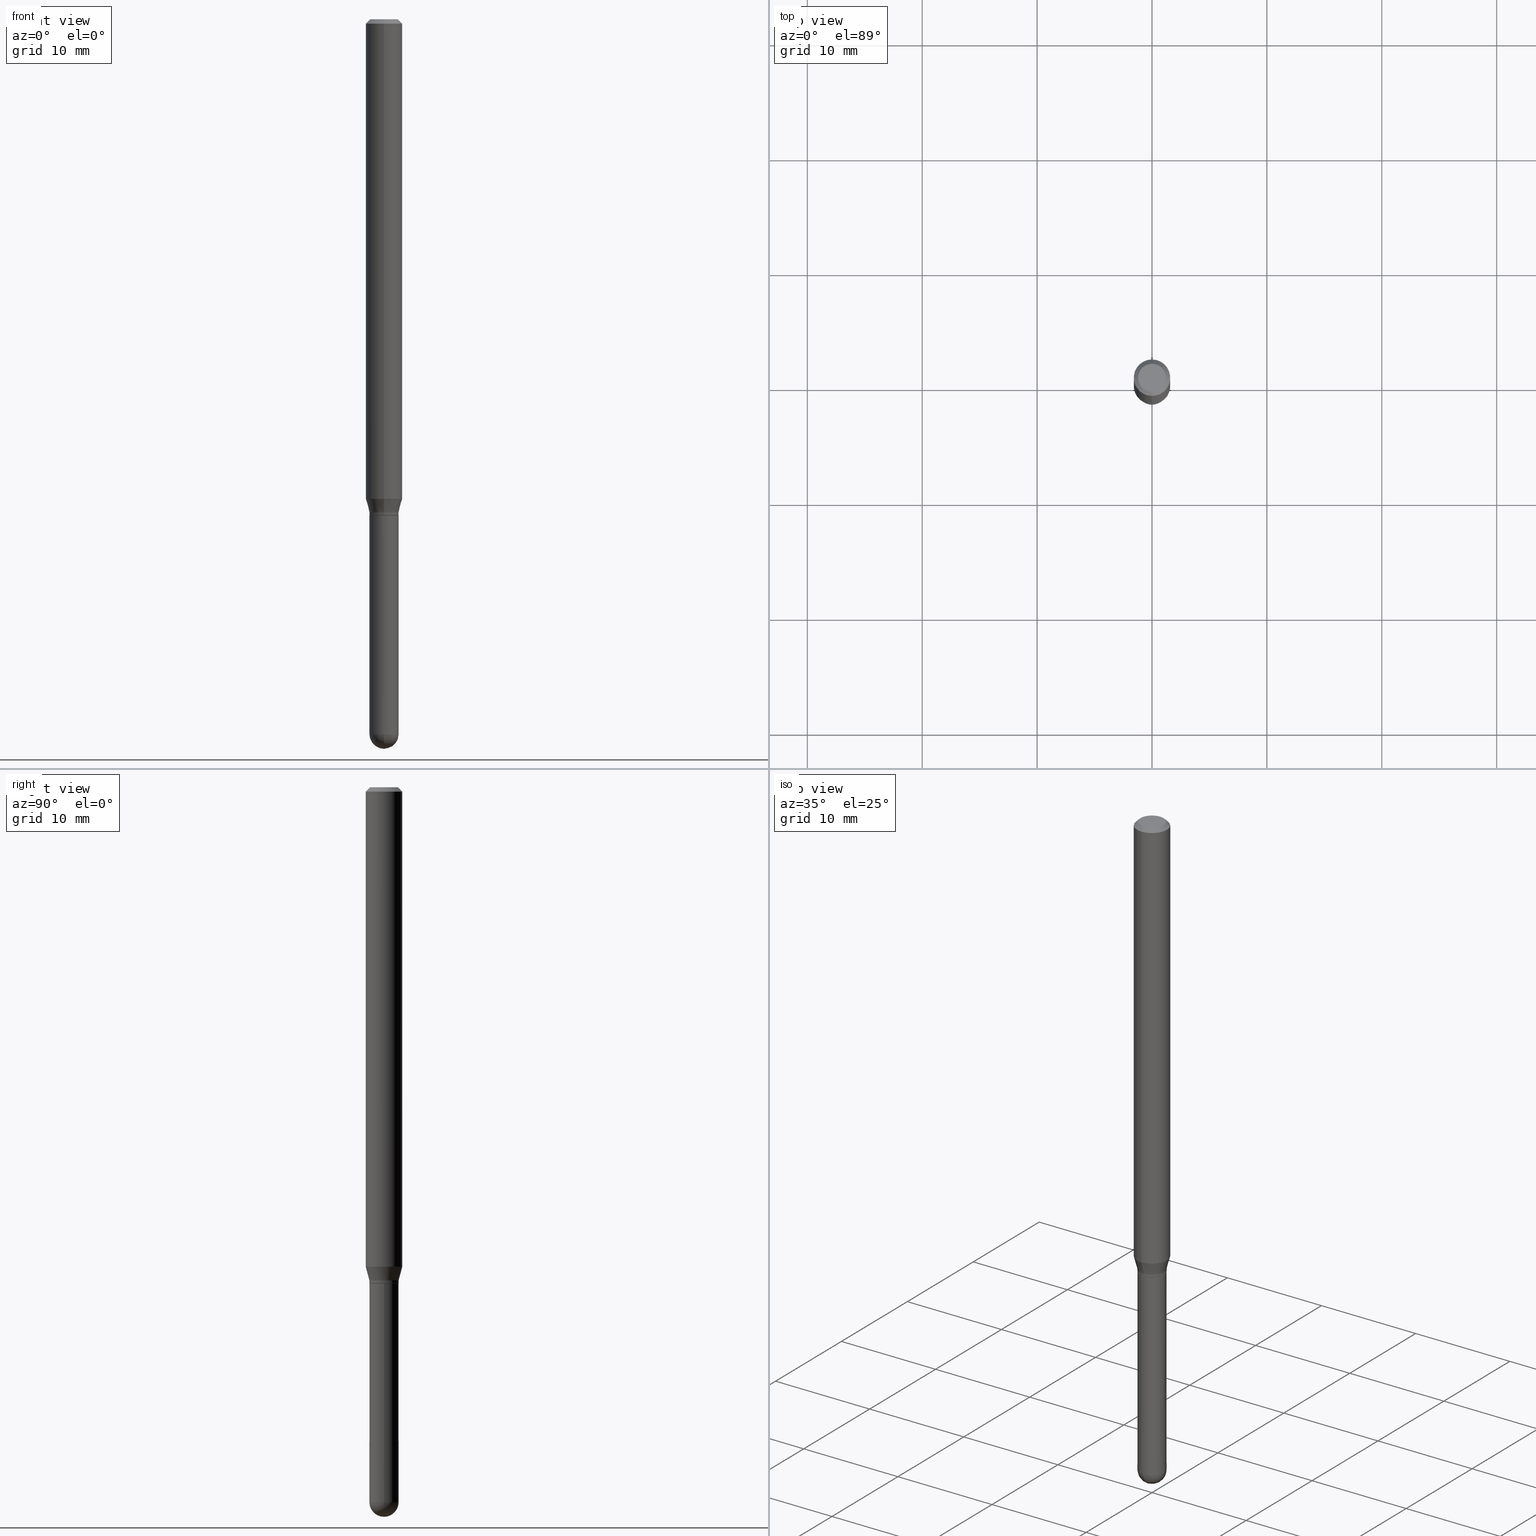
[diagram: canonical four-view strip — front | top / right | iso, engineering-drawing reading convention]
A machine part, canonical four-view strip (front | top / right | iso — engineering-drawing reading convention). The complete STEP part file that produces these views, byte-faithful:
ISO-10303-21;
HEADER;
FILE_DESCRIPTION (( 'STEP AP203' ),
    '1' );
FILE_NAME ('01002.STEP',
    '2024-03-07T19:39:22',
    ( '' ),
    ( '' ),
    'SwSTEP 2.0',
    'SolidWorks 2023',
    '' );
FILE_SCHEMA (( 'CONFIG_CONTROL_DESIGN' ));
ENDSEC;

DATA;
#1 = ORIENTED_EDGE ( 'NONE', *, *, #73, .T. ) ;
#2 = VECTOR ( 'NONE', #104, 39.37007874015748143 ) ;
#3 = CARTESIAN_POINT ( 'NONE',  ( 4.364351673553919652E-16, 0.06249999999999995143, -0.01500000000000022669 ) ) ;
#4 = LOCAL_TIME ( 14, 39, 22.00000000000000000, #184 ) ;
#5 = EDGE_CURVE ( 'NONE', #285, #193, #212, .T. ) ;
#6 = EDGE_LOOP ( 'NONE', ( #508, #202, #99, #32, #197 ) ) ;
#7 = PERSON_AND_ORGANIZATION ( #460, #199 ) ;
#8 = CARTESIAN_POINT ( 'NONE',  ( 4.157435647702293587E-29, -5.935319682407744327E-15, -1.699999999999999956 ) ) ;
#9 = CARTESIAN_POINT ( 'NONE',  ( 3.491481338843548493E-16, 0.04999999999999407002, -1.700000000000000400 ) ) ;
#10 = CARTESIAN_POINT ( 'NONE',  ( -3.491481338842696524E-16, -0.05000000000000556083, -1.689999999999999725 ) ) ;
#11 = PERSON_AND_ORGANIZATION_ROLE ( 'creator' ) ;
#12 = ORIENTED_EDGE ( 'NONE', *, *, #244, .T. ) ;
#13 = FACE_OUTER_BOUND ( 'NONE', #125, .T. ) ;
#14 = CC_DESIGN_APPROVAL ( #447, ( #178 ) ) ;
#15 = AXIS2_PLACEMENT_3D ( 'NONE', #238, #396, #358 ) ;
#16 = DATE_AND_TIME ( #47, #264 ) ;
#17 = DIRECTION ( 'NONE',  ( 6.982962677686265133E-15, 1.000000000000000000, -5.463695987328524859E-15 ) ) ;
#18 = CARTESIAN_POINT ( 'NONE',  ( 4.018893665462696370E-29, -5.737531665056008006E-15, -1.643349364905387855 ) ) ;
#19 = DIRECTION ( 'NONE',  ( -2.445468806185136597E-29, 3.491481338843145583E-15, 1.000000000000000000 ) ) ;
#20 = CARTESIAN_POINT ( 'NONE',  ( 0.000000000000000000, 0.000000000000000000, 0.000000000000000000 ) ) ;
#21 = CALENDAR_DATE ( 2024, 7, 3 ) ;
#22 = CARTESIAN_POINT ( 'NONE',  ( 4.440892098500625669E-16, 0.06250000000000000000, -2.182102824414611697E-16 ) ) ;
#23 = ADVANCED_FACE ( 'NONE', ( #405 ), #48, .T. ) ;
#24 = CYLINDRICAL_SURFACE ( 'NONE', #467, 0.04999999999999999584 ) ;
#25 = CC_DESIGN_PERSON_AND_ORGANIZATION_ASSIGNMENT ( #289, #419, ( #363 ) ) ;
#26 = DIRECTION ( 'NONE',  ( -2.445550381001349235E-29, 3.491364519063378714E-15, 1.000000000000000000 ) ) ;
#27 = AXIS2_PLACEMENT_3D ( 'NONE', #51, #134, #287 ) ;
#28 = AXIS2_PLACEMENT_3D ( 'NONE', #459, #343, #118 ) ;
#29 = ORIENTED_EDGE ( 'NONE', *, *, #57, .F. ) ;
#30 = AXIS2_PLACEMENT_3D ( 'NONE', #292, #63, #413 ) ;
#31 = CARTESIAN_POINT ( 'NONE',  ( 3.552713678800475982E-16, 0.04999999999999965583, -1.745682259531677327E-16 ) ) ;
#32 = ORIENTED_EDGE ( 'NONE', *, *, #251, .T. ) ;
#33 = ORIENTED_EDGE ( 'NONE', *, *, #284, .F. ) ;
#34 = CARTESIAN_POINT ( 'NONE',  ( 0.000000000000000000, 0.000000000000000000, 0.000000000000000000 ) ) ;
#35 = FACE_OUTER_BOUND ( 'NONE', #205, .T. ) ;
#36 = EDGE_CURVE ( 'NONE', #297, #41, #479, .T. ) ;
#37 = EDGE_LOOP ( 'NONE', ( #33, #55, #315, #355 ) ) ;
#38 = AXIS2_PLACEMENT_3D ( 'NONE', #20, #209, #189 ) ;
#39 = CYLINDRICAL_SURFACE ( 'NONE', #499, 0.04999999999999999584 ) ;
#40 = CONICAL_SURFACE ( 'NONE', #30, 0.06250000000000000000, 0.7853981633974483900 ) ;
#41 = VERTEX_POINT ( 'NONE', #435 ) ;
#42 = CARTESIAN_POINT ( 'NONE',  ( 3.552713678800889641E-16, 0.04999999999999376471, -1.690000000000000169 ) ) ;
#43 = ORIENTED_EDGE ( 'NONE', *, *, #89, .F. ) ;
#44 = COORDINATED_UNIVERSAL_TIME_OFFSET ( 5, 0, .BEHIND. ) ;
#45 = DIRECTION ( 'NONE',  ( 1.000000000000000000, -6.982962677686255667E-15, 0.000000000000000000 ) ) ;
#46 = ADVANCED_FACE ( 'NONE', ( #484 ), #365, .F. ) ;
#47 = CALENDAR_DATE ( 2024, 7, 3 ) ;
#48 = SPHERICAL_SURFACE ( 'NONE', #236, 0.05000000000000000971 ) ;
#49 = APPROVAL_DATE_TIME ( #480, #447 ) ;
#50 = AXIS2_PLACEMENT_3D ( 'NONE', #218, #211, #219 ) ;
#51 = CARTESIAN_POINT ( 'NONE',  ( 4.132980143892280352E-29, -5.900406037217110820E-15, -1.689999999999999947 ) ) ;
#52 = ORIENTED_EDGE ( 'NONE', *, *, #388, .F. ) ;
#53 = COORDINATED_UNIVERSAL_TIME_OFFSET ( 5, 0, .BEHIND. ) ;
#54 = FACE_OUTER_BOUND ( 'NONE', #359, .T. ) ;
#55 = ORIENTED_EDGE ( 'NONE', *, *, #153, .T. ) ;
#56 = DIRECTION ( 'NONE',  ( -2.445550381001349235E-29, 3.491364519063378714E-15, 1.000000000000000000 ) ) ;
#57 = EDGE_CURVE ( 'NONE', #297, #80, #431, .T. ) ;
#58 = ORIENTED_EDGE ( 'NONE', *, *, #89, .T. ) ;
#59 = CIRCLE ( 'NONE', #107, 0.05000000000000000278 ) ;
#60 = DIRECTION ( 'NONE',  ( -2.445550381001348954E-29, 3.491364519063378714E-15, 1.000000000000000000 ) ) ;
#61 = CIRCLE ( 'NONE', #214, 0.04999999999999999584 ) ;
#62 = CIRCLE ( 'NONE', #407, 0.04999999999999999584 ) ;
#63 = DIRECTION ( 'NONE',  ( 2.445550381001349235E-29, -3.491364519063378714E-15, -1.000000000000000000 ) ) ;
#64 = CARTESIAN_POINT ( 'NONE',  ( -3.491481338843108703E-16, -0.04999999999999965583, 1.745682259531677327E-16 ) ) ;
#65 = DIRECTION ( 'NONE',  ( 2.445550381001348954E-29, -3.491364519063378714E-15, -1.000000000000000000 ) ) ;
#66 = EDGE_CURVE ( 'NONE', #172, #78, #200, .T. ) ;
#67 = DIRECTION ( 'NONE',  ( -2.445550381001349235E-29, 3.491364519063378714E-15, 1.000000000000000000 ) ) ;
#68 = CARTESIAN_POINT ( 'NONE',  ( 3.534950110406901418E-16, 0.04949999999999407652, -1.700000000000000178 ) ) ;
#69 = CIRCLE ( 'NONE', #119, 0.05000000000000000971 ) ;
#70 = VECTOR ( 'NONE', #105, 39.37007874015748143 ) ;
#71 = DATE_AND_TIME ( #21, #4 ) ;
#72 = CARTESIAN_POINT ( 'NONE',  ( 5.991398575153583765E-29, -8.554129280165706697E-15, -2.449999999999999734 ) ) ;
#73 = EDGE_CURVE ( 'NONE', #473, #177, #259, .T. ) ;
#74 = DIRECTION ( 'NONE',  ( -6.982962677686266711E-15, -1.000000000000000000, 5.518884835685379092E-15 ) ) ;
#75 = DIRECTION ( 'NONE',  ( -6.982962677686265922E-15, -1.000000000000000000, 3.483106191921935554E-15 ) ) ;
#76 = VECTOR ( 'NONE', #277, 39.37007874015748143 ) ;
#77 = APPROVAL_PERSON_ORGANIZATION ( #453, #344, #294 ) ;
#78 = VERTEX_POINT ( 'NONE', #88 ) ;
#79 = DIRECTION ( 'NONE',  ( -2.445550381001349235E-29, 3.491364519063378714E-15, 1.000000000000000000 ) ) ;
#80 = VERTEX_POINT ( 'NONE', #171 ) ;
#81 = LINE ( 'NONE', #507, #352 ) ;
#82 = EDGE_CURVE ( 'NONE', #391, #354, #255, .T. ) ;
#83 = ORIENTED_EDGE ( 'NONE', *, *, #57, .T. ) ;
#84 =( LENGTH_UNIT ( ) NAMED_UNIT ( * ) SI_UNIT ( $, .METRE. ) );
#85 = ORIENTED_EDGE ( 'NONE', *, *, #388, .T. ) ;
#86 = CIRCLE ( 'NONE', #383, 0.04999999999999965583 ) ;
#87 = DIRECTION ( 'NONE',  ( -6.982962677686265133E-15, -1.000000000000000000, 5.463695987328563513E-15 ) ) ;
#88 = CARTESIAN_POINT ( 'NONE',  ( -3.552713678799901099E-16, -0.05000000000000856537, -2.449999999999999734 ) ) ;
#89 = EDGE_CURVE ( 'NONE', #96, #193, #372, .T. ) ;
#90 = EDGE_LOOP ( 'NONE', ( #43, #135, #349, #325 ) ) ;
#91 = DIRECTION ( 'NONE',  ( 6.982962677686266711E-15, 1.000000000000000000, 0.000000000000000000 ) ) ;
#92 = VERTEX_POINT ( 'NONE', #233 ) ;
#93 = MANIFOLD_SOLID_BREP ( 'Body-Move/Copy2[2]', #305 ) ;
#94 = PERSON_AND_ORGANIZATION_ROLE ( 'classification_officer' ) ;
#95 = CARTESIAN_POINT ( 'NONE',  ( 5.987122743707687383E-29, -8.560252514161443770E-15, -2.450000000000000178 ) ) ;
#96 = VERTEX_POINT ( 'NONE', #163 ) ;
#97 = AXIS2_PLACEMENT_3D ( 'NONE', #123, #321, #126 ) ;
#98 = CARTESIAN_POINT ( 'NONE',  ( 0.04999999999999999584, -7.593971911983840291E-15, -2.449999999999999734 ) ) ;
#99 = ORIENTED_EDGE ( 'NONE', *, *, #158, .T. ) ;
#100 = LINE ( 'NONE', #401, #506 ) ;
#101 = UNCERTAINTY_MEASURE_WITH_UNIT (LENGTH_MEASURE( 1.000000000000000082E-05 ), #392, 'distance_accuracy_value', 'NONE');
#102 = EDGE_CURVE ( 'NONE', #354, #391, #132, .T. ) ;
#103 = EDGE_LOOP ( 'NONE', ( #291, #58, #368, #505 ) ) ;
#104 = DIRECTION ( 'NONE',  ( -2.445468806185136877E-29, 3.491481338843145188E-15, 1.000000000000000000 ) ) ;
#105 = DIRECTION ( 'NONE',  ( -2.445550381001348954E-29, 3.491364519063378714E-15, 1.000000000000000000 ) ) ;
#106 = PERSON_AND_ORGANIZATION ( #460, #199 ) ;
#107 = AXIS2_PLACEMENT_3D ( 'NONE', #207, #318, #471 ) ;
#108 = FACE_OUTER_BOUND ( 'NONE', #443, .T. ) ;
#109 = CIRCLE ( 'NONE', #97, 0.04749999999999999362 ) ;
#110 = VECTOR ( 'NONE', #452, 39.37007874015748143 ) ;
#111 = ADVANCED_FACE ( 'NONE', ( #35 ), #308, .T. ) ;
#112 = PLANE ( 'NONE',  #385 ) ;
#113 = CARTESIAN_POINT ( 'NONE',  ( 3.668325571502026339E-31, -5.237046778595071055E-17, -0.01500000000000000812 ) ) ;
#114 = AXIS2_PLACEMENT_3D ( 'NONE', #151, #226, #190 ) ;
#115 = AXIS2_PLACEMENT_3D ( 'NONE', #95, #124, #91 ) ;
#116 = CARTESIAN_POINT ( 'NONE',  ( 4.157435647702293587E-29, -5.935319682407744327E-15, -1.699999999999999956 ) ) ;
#117 = ORIENTED_EDGE ( 'NONE', *, *, #269, .T. ) ;
#118 = DIRECTION ( 'NONE',  ( -6.982962677686265922E-15, -1.000000000000000000, 3.491364519063378714E-15 ) ) ;
#119 = AXIS2_PLACEMENT_3D ( 'NONE', #265, #496, #497 ) ;
#120 = ORIENTED_EDGE ( 'NONE', *, *, #376, .T. ) ;
#121 = EDGE_CURVE ( 'NONE', #177, #278, #155, .T. ) ;
#122 = ORIENTED_EDGE ( 'NONE', *, *, #357, .F. ) ;
#123 = CARTESIAN_POINT ( 'NONE',  ( 2.168192816479982563E-46, -3.095397882110583642E-32, -8.865868531370020631E-18 ) ) ;
#124 = DIRECTION ( 'NONE',  ( 1.000000000000000000, -6.982962677686265922E-15, 4.883557194083112340E-29 ) ) ;
#125 = EDGE_LOOP ( 'NONE', ( #143, #503, #29, #246 ) ) ;
#126 = DIRECTION ( 'NONE',  ( -6.982962677686266711E-15, -1.000000000000000000, 3.491364519063378714E-15 ) ) ;
#127 = CC_DESIGN_DATE_AND_TIME_ASSIGNMENT ( #16, #483, ( #203 ) ) ;
#128 = ORIENTED_EDGE ( 'NONE', *, *, #36, .F. ) ;
#129 = CC_DESIGN_APPROVAL ( #344, ( #203 ) ) ;
#130 = PERSON_AND_ORGANIZATION ( #460, #199 ) ;
#131 = CARTESIAN_POINT ( 'NONE',  ( -3.491481338842686663E-16, -0.05000000000000548450, -1.699500000000000011 ) ) ;
#132 = CIRCLE ( 'NONE', #280, 0.04950000000000000927 ) ;
#133 = ORIENTED_EDGE ( 'NONE', *, *, #284, .T. ) ;
#134 = DIRECTION ( 'NONE',  ( -2.445550381001349235E-29, 3.491364519063378714E-15, 1.000000000000000000 ) ) ;
#135 = ORIENTED_EDGE ( 'NONE', *, *, #307, .T. ) ;
#136 = LINE ( 'NONE', #149, #2 ) ;
#137 = CARTESIAN_POINT ( 'NONE',  ( 5.991398575153583765E-29, -8.554129280165706697E-15, -2.449999999999999734 ) ) ;
#138 = VECTOR ( 'NONE', #481, 39.37007874015748854 ) ;
#139 = EDGE_CURVE ( 'NONE', #92, #167, #59, .T. ) ;
#140 = DIRECTION ( 'NONE',  ( -2.445550381001349235E-29, 3.491364519063378714E-15, 1.000000000000000000 ) ) ;
#141 = AXIS2_PLACEMENT_3D ( 'NONE', #9, #174, #328 ) ;
#142 = DIMENSIONAL_EXPONENTS ( 1.000000000000000000, 0.000000000000000000, 0.000000000000000000, 0.000000000000000000, 0.000000000000000000, 0.000000000000000000, 0.000000000000000000 ) ;
#143 = ORIENTED_EDGE ( 'NONE', *, *, #121, .T. ) ;
#144 = FACE_OUTER_BOUND ( 'NONE', #164, .T. ) ;
#145 = CARTESIAN_POINT ( 'NONE',  ( 5.987122743707687383E-29, -8.560252514161443770E-15, -2.450000000000000178 ) ) ;
#146 = CARTESIAN_POINT ( 'NONE',  ( 5.991398575153583765E-29, -8.554129280165706697E-15, -2.449999999999999734 ) ) ;
#147 = ADVANCED_FACE ( 'NONE', ( #144 ), #281, .T. ) ;
#148 = AXIS2_PLACEMENT_3D ( 'NONE', #113, #194, #75 ) ;
#149 = CARTESIAN_POINT ( 'NONE',  ( -0.04999999999999999584, 3.552713678800500634E-16, -2.459467545127452961E-30 ) ) ;
#150 = CC_DESIGN_SECURITY_CLASSIFICATION ( #192, ( #178 ) ) ;
#151 = CARTESIAN_POINT ( 'NONE',  ( 4.157296970514732439E-29, -5.935518276033348003E-15, -1.700000000000000178 ) ) ;
#152 = DIRECTION ( 'NONE',  ( -2.445550381001349235E-29, 3.491364519063378714E-15, 1.000000000000000000 ) ) ;
#153 = EDGE_CURVE ( 'NONE', #80, #297, #409, .T. ) ;
#154 = AXIS2_PLACEMENT_3D ( 'NONE', #470, #196, #427 ) ;
#155 = CIRCLE ( 'NONE', #27, 0.04999999999999966277 ) ;
#156 = ORIENTED_EDGE ( 'NONE', *, *, #367, .F. ) ;
#157 = DIRECTION ( 'NONE',  ( -6.982962677686265922E-15, -1.000000000000000000, 3.491364519063378714E-15 ) ) ;
#158 = EDGE_CURVE ( 'NONE', #78, #285, #62, .T. ) ;
#159 = ORIENTED_EDGE ( 'NONE', *, *, #367, .T. ) ;
#160 = DIRECTION ( 'NONE',  ( 1.000000000000000000, 0.000000000000000000, 0.000000000000000000 ) ) ;
#161 = ORIENTED_EDGE ( 'NONE', *, *, #509, .T. ) ;
#162 = DIRECTION ( 'NONE',  ( -2.445550381001349235E-29, 3.491364519063378714E-15, 1.000000000000000000 ) ) ;
#163 = CARTESIAN_POINT ( 'NONE',  ( 6.111534099739893301E-29, -8.731764964105732690E-15, -2.500000000000000000 ) ) ;
#164 = EDGE_LOOP ( 'NONE', ( #397, #445, #469, #120 ) ) ;
#165 = FACE_OUTER_BOUND ( 'NONE', #491, .T. ) ;
#166 = ADVANCED_FACE ( 'NONE', ( #13 ), #170, .T. ) ;
#167 = VERTEX_POINT ( 'NONE', #492 ) ;
#168 = AXIS2_PLACEMENT_3D ( 'NONE', #34, #504, #160 ) ;
#169 = DIRECTION ( 'NONE',  ( -2.445550381001349235E-29, 3.491364519063378714E-15, 1.000000000000000000 ) ) ;
#170 = CONICAL_SURFACE ( 'NONE', #322, 0.04999999999999966277, 0.2617993877991499074 ) ;
#171 = CARTESIAN_POINT ( 'NONE',  ( 4.440892098501028481E-16, 0.06249999999999429623, -1.643349364905388077 ) ) ;
#172 = VERTEX_POINT ( 'NONE', #336 ) ;
#173 = ADVANCED_FACE ( 'NONE', ( #290 ), #227, .T. ) ;
#174 = DIRECTION ( 'NONE',  ( 2.438088387897960049E-29, -3.491481338843145188E-15, -1.000000000000000000 ) ) ;
#175 = PERSON_AND_ORGANIZATION ( #460, #199 ) ;
#176 = DIRECTION ( 'NONE',  ( -4.851104656540964275E-15, -0.7071067811865500152, -0.7071067811865450192 ) ) ;
#177 = VERTEX_POINT ( 'NONE', #485 ) ;
#178 = PRODUCT_DEFINITION_FORMATION_WITH_SPECIFIED_SOURCE ( 'ANY', '', #363, .NOT_KNOWN. ) ;
#179 = LINE ( 'NONE', #22, #300 ) ;
#180 = AXIS2_PLACEMENT_3D ( 'NONE', #486, #67, #217 ) ;
#181 = DIRECTION ( 'NONE',  ( -1.000000000000000000, 6.982962677686265133E-15, -4.883557194083112340E-29 ) ) ;
#182 = DIRECTION ( 'NONE',  ( 6.982962677686265922E-15, 1.000000000000000000, -3.483106191921935554E-15 ) ) ;
#183 = DIRECTION ( 'NONE',  ( 1.000000000000000000, -6.982962677686255667E-15, 0.000000000000000000 ) ) ;
#184 = COORDINATED_UNIVERSAL_TIME_OFFSET ( 5, 0, .BEHIND. ) ;
#185 = DIRECTION ( 'NONE',  ( -2.445468806185136597E-29, 3.491481338843145583E-15, 1.000000000000000000 ) ) ;
#186 = AXIS2_PLACEMENT_3D ( 'NONE', #347, #26, #417 ) ;
#187 = CARTESIAN_POINT ( 'NONE',  ( 0.04999999999999999584, -3.491481338843132862E-16, 2.438088387897967896E-30 ) ) ;
#188 = APPLICATION_PROTOCOL_DEFINITION ( 'international standard', 'config_control_design', 1994, #268 ) ;
#189 = DIRECTION ( 'NONE',  ( -6.982962677686265133E-15, -1.000000000000000000, 3.491364519063378714E-15 ) ) ;
#190 = DIRECTION ( 'NONE',  ( 1.000000000000000000, -6.982962677686274599E-15, 0.000000000000000000 ) ) ;
#191 = VECTOR ( 'NONE', #494, 39.37007874015748143 ) ;
#192 = SECURITY_CLASSIFICATION ( '', '', #206 ) ;
#193 = VERTEX_POINT ( 'NONE', #329 ) ;
#194 = DIRECTION ( 'NONE',  ( -2.445550381001349235E-29, 3.491364519063378714E-15, 1.000000000000000000 ) ) ;
#195 = ORIENTED_EDGE ( 'NONE', *, *, #402, .T. ) ;
#196 = DIRECTION ( 'NONE',  ( -1.000000000000000000, 6.982962677686265133E-15, -4.883557194083112340E-29 ) ) ;
#197 = ORIENTED_EDGE ( 'NONE', *, *, #139, .F. ) ;
#198 = DIRECTION ( 'NONE',  ( -2.445550381001349235E-29, 3.491364519063378714E-15, 1.000000000000000000 ) ) ;
#199 = ORGANIZATION ( 'UNSPECIFIED', 'UNSPECIFIED', '' ) ;
#200 = CIRCLE ( 'NONE', #488, 0.04999999999999999584 ) ;
#201 = LINE ( 'NONE', #42, #138 ) ;
#202 = ORIENTED_EDGE ( 'NONE', *, *, #66, .T. ) ;
#203 = PRODUCT_DEFINITION ( 'UNKNOWN', '', #178, #337 ) ;
#204 = ORIENTED_EDGE ( 'NONE', *, *, #474, .F. ) ;
#205 = EDGE_LOOP ( 'NONE', ( #432, #161, #252, #511 ) ) ;
#206 = SECURITY_CLASSIFICATION_LEVEL ( 'unclassified' ) ;
#207 = CARTESIAN_POINT ( 'NONE',  ( 4.157296970514732439E-29, -5.935518276033348003E-15, -1.700000000000000178 ) ) ;
#208 = ORIENTED_EDGE ( 'NONE', *, *, #416, .T. ) ;
#209 = DIRECTION ( 'NONE',  ( -2.445550381001349235E-29, 3.491364519063378714E-15, 1.000000000000000000 ) ) ;
#210 = ORIENTED_EDGE ( 'NONE', *, *, #269, .F. ) ;
#211 = DIRECTION ( 'NONE',  ( -2.445550381001349235E-29, 3.491364519063378714E-15, 1.000000000000000000 ) ) ;
#212 = CIRCLE ( 'NONE', #498, 0.04999999999999999584 ) ;
#213 = EDGE_CURVE ( 'NONE', #177, #297, #247, .T. ) ;
#214 = AXIS2_PLACEMENT_3D ( 'NONE', #72, #317, #45 ) ;
#215 = CARTESIAN_POINT ( 'NONE',  ( 4.440892098501030453E-16, 0.06249999999999995143, -0.01500000000000022669 ) ) ;
#216 = AXIS2_PLACEMENT_3D ( 'NONE', #18, #56, #377 ) ;
#217 = DIRECTION ( 'NONE',  ( -6.982962677686265922E-15, -1.000000000000000000, 4.370956789862821150E-15 ) ) ;
#218 = CARTESIAN_POINT ( 'NONE',  ( 4.156212872511794158E-29, -5.933574000148213520E-15, -1.699500000000000233 ) ) ;
#219 = DIRECTION ( 'NONE',  ( -6.982962677686265133E-15, -1.000000000000000000, 5.463695987328564302E-15 ) ) ;
#220 = AXIS2_PLACEMENT_3D ( 'NONE', #313, #162, #87 ) ;
#221 = CARTESIAN_POINT ( 'NONE',  ( 0.000000000000000000, 0.000000000000000000, 0.000000000000000000 ) ) ;
#222 = EDGE_CURVE ( 'NONE', #172, #92, #136, .T. ) ;
#223 = CALENDAR_DATE ( 2024, 7, 3 ) ;
#224 = CARTESIAN_POINT ( 'NONE',  ( 3.668325571502026339E-31, -5.237046778595071055E-17, -0.01500000000000000812 ) ) ;
#225 = EDGE_CURVE ( 'NONE', #230, #41, #260, .T. ) ;
#226 = DIRECTION ( 'NONE',  ( -2.445468806185136597E-29, 3.491481338843145583E-15, 1.000000000000000000 ) ) ;
#227 = CONICAL_SURFACE ( 'NONE', #478, 0.04950000000000000927, 0.7853981633974653764 ) ;
#228 = LOCAL_TIME ( 14, 39, 22.00000000000000000, #495 ) ;
#229 = VECTOR ( 'NONE', #176, 39.37007874015748143 ) ;
#230 = VERTEX_POINT ( 'NONE', #487 ) ;
#231 = CYLINDRICAL_SURFACE ( 'NONE', #379, 0.04999999999999965583 ) ;
#232 = ORIENTED_EDGE ( 'NONE', *, *, #222, .T. ) ;
#233 = CARTESIAN_POINT ( 'NONE',  ( -0.05000000000000000278, -6.889552410219476547E-15, -1.700000000000000178 ) ) ;
#234 = LOCAL_TIME ( 14, 39, 22.00000000000000000, #53 ) ;
#235 = ADVANCED_FACE ( 'NONE', ( #298 ), #40, .T. ) ;
#236 = AXIS2_PLACEMENT_3D ( 'NONE', #145, #181, #17 ) ;
#237 = CARTESIAN_POINT ( 'NONE',  ( 0.000000000000000000, 0.000000000000000000, 0.000000000000000000 ) ) ;
#238 = CARTESIAN_POINT ( 'NONE',  ( 4.157435647702293587E-29, -5.935319682407744327E-15, -1.699999999999999956 ) ) ;
#239 = VERTEX_POINT ( 'NONE', #215 ) ;
#240 = PERSON_AND_ORGANIZATION_ROLE ( 'design_supplier' ) ;
#241 = DIRECTION ( 'NONE',  ( -2.445468806185136597E-29, 3.491481338843145583E-15, 1.000000000000000000 ) ) ;
#242 = ORIENTED_EDGE ( 'NONE', *, *, #225, .T. ) ;
#243 = CALENDAR_DATE ( 2024, 7, 3 ) ;
#244 = EDGE_CURVE ( 'NONE', #438, #230, #258, .T. ) ;
#245 = CIRCLE ( 'NONE', #256, 0.06250000000000000000 ) ;
#246 = ORIENTED_EDGE ( 'NONE', *, *, #213, .F. ) ;
#247 = LINE ( 'NONE', #10, #191 ) ;
#248 = COORDINATED_UNIVERSAL_TIME_OFFSET ( 5, 0, .BEHIND. ) ;
#249 = EDGE_LOOP ( 'NONE', ( #204, #426, #117, #389 ) ) ;
#250 = CARTESIAN_POINT ( 'NONE',  ( 4.157435647702293587E-29, -5.935319682407744327E-15, -1.699999999999999956 ) ) ;
#251 = EDGE_CURVE ( 'NONE', #285, #167, #253, .T. ) ;
#252 = ORIENTED_EDGE ( 'NONE', *, *, #213, .T. ) ;
#253 = LINE ( 'NONE', #187, #110 ) ;
#254 = DATE_AND_TIME ( #223, #228 ) ;
#255 = CIRCLE ( 'NONE', #15, 0.04950000000000000927 ) ;
#256 = AXIS2_PLACEMENT_3D ( 'NONE', #224, #79, #387 ) ;
#257 = DIRECTION ( 'NONE',  ( -4.937700262164631661E-15, -0.7071067811865571207, 0.7071067811865379138 ) ) ;
#258 = CIRCLE ( 'NONE', #324, 0.04749999999999999362 ) ;
#259 = LINE ( 'NONE', #64, #76 ) ;
#260 = LINE ( 'NONE', #490, #229 ) ;
#261 = DATE_TIME_ROLE ( 'classification_date' ) ;
#262 = LINE ( 'NONE', #31, #408 ) ;
#263 = ADVANCED_FACE ( 'NONE', ( #108 ), #112, .F. ) ;
#264 = LOCAL_TIME ( 14, 39, 22.00000000000000000, #248 ) ;
#265 = CARTESIAN_POINT ( 'NONE',  ( 5.987122743707687383E-29, -8.560252514161443770E-15, -2.450000000000000178 ) ) ;
#266 = AXIS2_PLACEMENT_3D ( 'NONE', #482, #198, #353 ) ;
#267 = APPROVAL_DATE_TIME ( #71, #412 ) ;
#268 = APPLICATION_CONTEXT ( 'configuration controlled 3d designs of mechanical parts and assemblies' ) ;
#269 = EDGE_CURVE ( 'NONE', #354, #473, #100, .T. ) ;
#270 = DIRECTION ( 'NONE',  ( -2.445550381001349235E-29, 3.491364519063378714E-15, 1.000000000000000000 ) ) ;
#271 = CC_DESIGN_PERSON_AND_ORGANIZATION_ASSIGNMENT ( #7, #94, ( #192 ) ) ;
#272 = CARTESIAN_POINT ( 'NONE',  ( 0.000000000000000000, 0.000000000000000000, 0.000000000000000000 ) ) ;
#273 = EDGE_LOOP ( 'NONE', ( #371, #334, #319, #210 ) ) ;
#274 = ORIENTED_EDGE ( 'NONE', *, *, #5, .T. ) ;
#275 = DIRECTION ( 'NONE',  ( 1.000000000000000000, -6.982962677686265922E-15, 4.876176775795936353E-29 ) ) ;
#276 = EDGE_CURVE ( 'NONE', #473, #386, #330, .T. ) ;
#277 = DIRECTION ( 'NONE',  ( -2.445550381001348954E-29, 3.491364519063378714E-15, 1.000000000000000000 ) ) ;
#278 = VERTEX_POINT ( 'NONE', #406 ) ;
#279 = CARTESIAN_POINT ( 'NONE',  ( 4.156212872511794158E-29, -5.933574000148213520E-15, -1.699500000000000233 ) ) ;
#280 = AXIS2_PLACEMENT_3D ( 'NONE', #8, #398, #390 ) ;
#281 = CONICAL_SURFACE ( 'NONE', #345, 0.06250000000000000000, 0.7853981633974483900 ) ;
#282 = ORIENTED_EDGE ( 'NONE', *, *, #82, .F. ) ;
#283 = CALENDAR_DATE ( 2024, 7, 3 ) ;
#284 = EDGE_CURVE ( 'NONE', #80, #239, #179, .T. ) ;
#285 = VERTEX_POINT ( 'NONE', #98 ) ;
#286 = APPLICATION_PROTOCOL_DEFINITION ( 'international standard', 'config_control_design', 1994, #411 ) ;
#287 = DIRECTION ( 'NONE',  ( -6.982962677686265133E-15, -1.000000000000000000, 5.463695987328563513E-15 ) ) ;
#288 = ORIENTED_EDGE ( 'NONE', *, *, #462, .T. ) ;
#289 = PERSON_AND_ORGANIZATION ( #460, #199 ) ;
#290 = FACE_OUTER_BOUND ( 'NONE', #249, .T. ) ;
#291 = ORIENTED_EDGE ( 'NONE', *, *, #307, .F. ) ;
#292 = CARTESIAN_POINT ( 'NONE',  ( 3.668325571502026339E-31, -5.237046778595071055E-17, -0.01500000000000000812 ) ) ;
#293 = ORIENTED_EDGE ( 'NONE', *, *, #456, .F. ) ;
#294 = APPROVAL_ROLE ( '' ) ;
#295 = CARTESIAN_POINT ( 'NONE',  ( 3.668325571502026339E-31, -5.237046778595071055E-17, -0.01500000000000000812 ) ) ;
#296 = ADVANCED_FACE ( 'NONE', ( #54 ), #375, .T. ) ;
#297 = VERTEX_POINT ( 'NONE', #501 ) ;
#298 = FACE_OUTER_BOUND ( 'NONE', #351, .T. ) ;
#299 = APPROVAL_STATUS ( 'not_yet_approved' ) ;
#300 = VECTOR ( 'NONE', #60, 39.37007874015748143 ) ;
#301 = DIRECTION ( 'NONE',  ( 1.000000000000000000, -6.982962677686255667E-15, 0.000000000000000000 ) ) ;
#302 = ADVANCED_FACE ( 'NONE', ( #455 ), #309, .T. ) ;
#303 = CYLINDRICAL_SURFACE ( 'NONE', #186, 0.06250000000000000000 ) ;
#304 = CARTESIAN_POINT ( 'NONE',  ( -3.456566525454287160E-16, -0.04950000000000594202, -1.699999999999999734 ) ) ;
#305 = CLOSED_SHELL ( 'NONE', ( #296, #338, #235, #316, #166, #111, #302, #147, #263, #382, #173, #332 ) ) ;
#306 = DIRECTION ( 'NONE',  ( -2.445550381001348954E-29, 3.491364519063378714E-15, 1.000000000000000000 ) ) ;
#307 = EDGE_CURVE ( 'NONE', #96, #78, #69, .T. ) ;
#308 = CONICAL_SURFACE ( 'NONE', #266, 0.04999999999999966277, 0.2617993877991499074 ) ;
#309 = CYLINDRICAL_SURFACE ( 'NONE', #422, 0.06250000000000000000 ) ;
#310 = ORIENTED_EDGE ( 'NONE', *, *, #276, .T. ) ;
#311 = PLANE ( 'NONE',  #28 ) ;
#312 = ORIENTED_EDGE ( 'NONE', *, *, #121, .F. ) ;
#313 = CARTESIAN_POINT ( 'NONE',  ( 4.132980143892280352E-29, -5.900406037217110820E-15, -1.689999999999999947 ) ) ;
#314 = CIRCLE ( 'NONE', #220, 0.04999999999999966277 ) ;
#315 = ORIENTED_EDGE ( 'NONE', *, *, #36, .T. ) ;
#316 = ADVANCED_FACE ( 'NONE', ( #465 ), #303, .T. ) ;
#317 = DIRECTION ( 'NONE',  ( -2.445468806185136597E-29, 3.491481338843145583E-15, 1.000000000000000000 ) ) ;
#318 = DIRECTION ( 'NONE',  ( -2.445468806185136597E-29, 3.491481338843145583E-15, 1.000000000000000000 ) ) ;
#319 = ORIENTED_EDGE ( 'NONE', *, *, #276, .F. ) ;
#320 = DIRECTION ( 'NONE',  ( -6.982962677686265133E-15, -1.000000000000000000, 5.463695987328564302E-15 ) ) ;
#321 = DIRECTION ( 'NONE',  ( -2.445550381001349235E-29, 3.491364519063378714E-15, 1.000000000000000000 ) ) ;
#322 = AXIS2_PLACEMENT_3D ( 'NONE', #369, #410, #335 ) ;
#323 = CIRCLE ( 'NONE', #114, 0.05000000000000000278 ) ;
#324 = AXIS2_PLACEMENT_3D ( 'NONE', #373, #450, #404 ) ;
#325 = ORIENTED_EDGE ( 'NONE', *, *, #402, .F. ) ;
#326 = DIRECTION ( 'NONE',  ( 1.000000000000000000, -6.982962677686255667E-15, 0.000000000000000000 ) ) ;
#327 = DATE_AND_TIME ( #243, #477 ) ;
#328 = DIRECTION ( 'NONE',  ( -1.000000000000000000, 6.982962677686265922E-15, -4.876176775795935793E-29 ) ) ;
#329 = CARTESIAN_POINT ( 'NONE',  ( 3.491481338843731903E-16, 0.04999999999999144018, -2.450000000000000178 ) ) ;
#330 = CIRCLE ( 'NONE', #50, 0.04999999999999965583 ) ;
#331 = ORIENTED_EDGE ( 'NONE', *, *, #357, .T. ) ;
#332 = ADVANCED_FACE ( 'NONE', ( #380 ), #231, .T. ) ;
#333 = DIRECTION ( 'NONE',  ( -6.982962677686266711E-15, -1.000000000000000000, 5.518884835685379092E-15 ) ) ;
#334 = ORIENTED_EDGE ( 'NONE', *, *, #474, .T. ) ;
#335 = DIRECTION ( 'NONE',  ( -6.982962677686265133E-15, -1.000000000000000000, 5.463695987328563513E-15 ) ) ;
#336 = CARTESIAN_POINT ( 'NONE',  ( -0.04999999999999999584, -6.889552410219476547E-15, -2.449999999999999734 ) ) ;
#337 = DESIGN_CONTEXT ( 'detailed design', #268, 'design' ) ;
#338 = ADVANCED_FACE ( 'NONE', ( #461 ), #339, .T. ) ;
#339 = CONICAL_SURFACE ( 'NONE', #346, 0.04950000000000000927, 0.7853981633974653764 ) ;
#340 = APPROVAL_ROLE ( '' ) ;
#341 = DIRECTION ( 'NONE',  ( -6.982962677686265133E-15, -1.000000000000000000, 3.491364519063378714E-15 ) ) ;
#342 = ADVANCED_BREP_SHAPE_REPRESENTATION ( '01002', ( #418, #93, #168 ), #370 ) ;
#343 = DIRECTION ( 'NONE',  ( -2.445550381001348954E-29, 3.491364519063378714E-15, 1.000000000000000000 ) ) ;
#344 = APPROVAL ( #457, 'UNSPECIFIED' ) ;
#345 = AXIS2_PLACEMENT_3D ( 'NONE', #295, #446, #182 ) ;
#346 = AXIS2_PLACEMENT_3D ( 'NONE', #116, #270, #74 ) ;
#347 = CARTESIAN_POINT ( 'NONE',  ( 0.000000000000000000, 0.000000000000000000, 0.000000000000000000 ) ) ;
#348 = DIRECTION ( 'NONE',  ( -2.445550381001349235E-29, 3.491364519063378714E-15, 1.000000000000000000 ) ) ;
#349 = ORIENTED_EDGE ( 'NONE', *, *, #66, .F. ) ;
#350 = ADVANCED_FACE ( 'NONE', ( #381 ), #24, .T. ) ;
#351 = EDGE_LOOP ( 'NONE', ( #400, #242, #85, #293 ) ) ;
#352 = VECTOR ( 'NONE', #430, 39.37007874015748143 ) ;
#353 = DIRECTION ( 'NONE',  ( -6.982962677686265133E-15, -1.000000000000000000, 5.463695987328563513E-15 ) ) ;
#354 = VERTEX_POINT ( 'NONE', #304 ) ;
#355 = ORIENTED_EDGE ( 'NONE', *, *, #376, .F. ) ;
#356 = SPHERICAL_SURFACE ( 'NONE', #154, 0.05000000000000000971 ) ;
#357 = EDGE_CURVE ( 'NONE', #386, #278, #262, .T. ) ;
#358 = DIRECTION ( 'NONE',  ( -6.982962677686266711E-15, -1.000000000000000000, 5.518884835685379092E-15 ) ) ;
#359 = EDGE_LOOP ( 'NONE', ( #310, #331, #312, #475 ) ) ;
#360 = CARTESIAN_POINT ( 'NONE',  ( 3.840629472727447874E-16, 0.04749999999999999362, -1.747056831868805136E-16 ) ) ;
#361 = CC_DESIGN_PERSON_AND_ORGANIZATION_ASSIGNMENT ( #433, #240, ( #178 ) ) ;
#362 = CC_DESIGN_APPROVAL ( #412, ( #192 ) ) ;
#363 = PRODUCT ( '01002', '01002', '', ( #437 ) ) ;
#364 = DIRECTION ( 'NONE',  ( -2.445468806185136597E-29, 3.491481338843145583E-15, 1.000000000000000000 ) ) ;
#365 = PLANE ( 'NONE',  #141 ) ;
#366 = APPROVAL_ROLE ( '' ) ;
#367 = EDGE_CURVE ( 'NONE', #167, #92, #323, .T. ) ;
#368 = ORIENTED_EDGE ( 'NONE', *, *, #5, .F. ) ;
#369 = CARTESIAN_POINT ( 'NONE',  ( 4.132980143892280352E-29, -5.900406037217110820E-15, -1.689999999999999947 ) ) ;
#370 =( GEOMETRIC_REPRESENTATION_CONTEXT ( 3 ) GLOBAL_UNCERTAINTY_ASSIGNED_CONTEXT ( ( #101 ) ) GLOBAL_UNIT_ASSIGNED_CONTEXT ( ( #392, #476, #434 ) ) REPRESENTATION_CONTEXT ( 'NONE', 'WORKASPACE' ) );
#371 = ORIENTED_EDGE ( 'NONE', *, *, #102, .T. ) ;
#372 = CIRCLE ( 'NONE', #115, 0.05000000000000000971 ) ;
#373 = CARTESIAN_POINT ( 'NONE',  ( 2.168192816479982563E-46, -3.095397882110583642E-32, -8.865868531370020631E-18 ) ) ;
#374 = CARTESIAN_POINT ( 'NONE',  ( 5.991398575153583765E-29, -8.554129280165706697E-15, -2.449999999999999734 ) ) ;
#375 = CYLINDRICAL_SURFACE ( 'NONE', #38, 0.04999999999999965583 ) ;
#376 = EDGE_CURVE ( 'NONE', #239, #41, #399, .T. ) ;
#377 = DIRECTION ( 'NONE',  ( -6.982962677686265922E-15, -1.000000000000000000, 4.370956789862821150E-15 ) ) ;
#378 = CC_DESIGN_PERSON_AND_ORGANIZATION_ASSIGNMENT ( #175, #436, ( #178 ) ) ;
#379 = AXIS2_PLACEMENT_3D ( 'NONE', #272, #152, #341 ) ;
#380 = FACE_OUTER_BOUND ( 'NONE', #463, .T. ) ;
#381 = FACE_OUTER_BOUND ( 'NONE', #6, .T. ) ;
#382 = ADVANCED_FACE ( 'NONE', ( #384 ), #311, .F. ) ;
#383 = AXIS2_PLACEMENT_3D ( 'NONE', #279, #169, #320 ) ;
#384 = FACE_OUTER_BOUND ( 'NONE', #428, .T. ) ;
#385 = AXIS2_PLACEMENT_3D ( 'NONE', #444, #65, #441 ) ;
#386 = VERTEX_POINT ( 'NONE', #415 ) ;
#387 = DIRECTION ( 'NONE',  ( -6.982962677686265922E-15, -1.000000000000000000, 3.483106191921935554E-15 ) ) ;
#388 = EDGE_CURVE ( 'NONE', #41, #239, #245, .T. ) ;
#389 = ORIENTED_EDGE ( 'NONE', *, *, #462, .F. ) ;
#390 = DIRECTION ( 'NONE',  ( -6.982962677686266711E-15, -1.000000000000000000, 5.518884835685379092E-15 ) ) ;
#391 = VERTEX_POINT ( 'NONE', #68 ) ;
#392 =( CONVERSION_BASED_UNIT ( 'INCH', #510 ) LENGTH_UNIT ( ) NAMED_UNIT ( #142 ) );
#393 = CC_DESIGN_PERSON_AND_ORGANIZATION_ASSIGNMENT ( #464, #11, ( #203 ) ) ;
#394 = EDGE_LOOP ( 'NONE', ( #159, #466 ) ) ;
#395 = APPROVAL_DATE_TIME ( #254, #344 ) ;
#396 = DIRECTION ( 'NONE',  ( -2.445550381001349235E-29, 3.491364519063378714E-15, 1.000000000000000000 ) ) ;
#397 = ORIENTED_EDGE ( 'NONE', *, *, #225, .F. ) ;
#398 = DIRECTION ( 'NONE',  ( -2.445550381001349235E-29, 3.491364519063378714E-15, 1.000000000000000000 ) ) ;
#399 = CIRCLE ( 'NONE', #148, 0.06250000000000000000 ) ;
#400 = ORIENTED_EDGE ( 'NONE', *, *, #416, .F. ) ;
#401 = CARTESIAN_POINT ( 'NONE',  ( -3.456566525454287160E-16, -0.04950000000000594202, -1.699999999999999734 ) ) ;
#402 = EDGE_CURVE ( 'NONE', #193, #172, #61, .T. ) ;
#403 = ORIENTED_EDGE ( 'NONE', *, *, #102, .F. ) ;
#404 = DIRECTION ( 'NONE',  ( -6.982962677686266711E-15, -1.000000000000000000, 3.491364519063378714E-15 ) ) ;
#405 = FACE_OUTER_BOUND ( 'NONE', #103, .T. ) ;
#406 = CARTESIAN_POINT ( 'NONE',  ( 3.996802888650959061E-16, 0.04999999999999376471, -1.690000000000000169 ) ) ;
#407 = AXIS2_PLACEMENT_3D ( 'NONE', #146, #185, #301 ) ;
#408 = VECTOR ( 'NONE', #306, 39.37007874015748143 ) ;
#409 = CIRCLE ( 'NONE', #216, 0.06250000000000000000 ) ;
#410 = DIRECTION ( 'NONE',  ( -2.445550381001349235E-29, 3.491364519063378714E-15, 1.000000000000000000 ) ) ;
#411 = APPLICATION_CONTEXT ( 'configuration controlled 3d designs of mechanical parts and assemblies' ) ;
#412 = APPROVAL ( #299, 'UNSPECIFIED' ) ;
#413 = DIRECTION ( 'NONE',  ( 6.982962677686265922E-15, 1.000000000000000000, -3.483106191921935554E-15 ) ) ;
#414 = DIRECTION ( 'NONE',  ( 1.000000000000000000, -6.982962677686265922E-15, 4.876176775795936353E-29 ) ) ;
#415 = CARTESIAN_POINT ( 'NONE',  ( 3.552713678800898515E-16, 0.04999999999999382716, -1.699500000000000455 ) ) ;
#416 = EDGE_CURVE ( 'NONE', #230, #438, #109, .T. ) ;
#417 = DIRECTION ( 'NONE',  ( -6.982962677686265922E-15, -1.000000000000000000, 3.491364519063378714E-15 ) ) ;
#418 = MANIFOLD_SOLID_BREP ( 'Body-Move/Copy2[1]', #429 ) ;
#419 = PERSON_AND_ORGANIZATION_ROLE ( 'design_owner' ) ;
#420 = CARTESIAN_POINT ( 'NONE',  ( 0.000000000000000000, 0.000000000000000000, 0.000000000000000000 ) ) ;
#421 = ORIENTED_EDGE ( 'NONE', *, *, #251, .F. ) ;
#422 = AXIS2_PLACEMENT_3D ( 'NONE', #221, #348, #157 ) ;
#423 = ADVANCED_FACE ( 'NONE', ( #468 ), #356, .T. ) ;
#424 = ORIENTED_EDGE ( 'NONE', *, *, #509, .F. ) ;
#425 = DIRECTION ( 'NONE',  ( 4.937700262164548042E-15, 0.7071067811865451302, -0.7071067811865499042 ) ) ;
#426 = ORIENTED_EDGE ( 'NONE', *, *, #82, .T. ) ;
#427 = DIRECTION ( 'NONE',  ( 6.982962677686265133E-15, 1.000000000000000000, -5.463695987328524859E-15 ) ) ;
#428 = EDGE_LOOP ( 'NONE', ( #403, #282 ) ) ;
#429 = CLOSED_SHELL ( 'NONE', ( #440, #423, #46, #23, #350 ) ) ;
#430 = DIRECTION ( 'NONE',  ( 5.024295867788147587E-15, 0.7071067811865620056, 0.7071067811865330288 ) ) ;
#431 = CIRCLE ( 'NONE', #180, 0.06250000000000000000 ) ;
#432 = ORIENTED_EDGE ( 'NONE', *, *, #500, .F. ) ;
#433 = PERSON_AND_ORGANIZATION ( #460, #199 ) ;
#434 =( NAMED_UNIT ( * ) SI_UNIT ( $, .STERADIAN. ) SOLID_ANGLE_UNIT ( ) );
#435 = CARTESIAN_POINT ( 'NONE',  ( -4.364351673553912750E-16, -0.06250000000000005551, -0.01499999999999979128 ) ) ;
#436 = PERSON_AND_ORGANIZATION_ROLE ( 'creator' ) ;
#437 = MECHANICAL_CONTEXT ( 'NONE', #411, 'mechanical' ) ;
#438 = VERTEX_POINT ( 'NONE', #360 ) ;
#439 = APPROVAL_STATUS ( 'not_yet_approved' ) ;
#440 = ADVANCED_FACE ( 'NONE', ( #165 ), #39, .T. ) ;
#441 = DIRECTION ( 'NONE',  ( 6.982962677686265922E-15, 1.000000000000000000, -3.491364519063378714E-15 ) ) ;
#442 = VECTOR ( 'NONE', #425, 39.37007874015748143 ) ;
#443 = EDGE_LOOP ( 'NONE', ( #12, #208 ) ) ;
#444 = CARTESIAN_POINT ( 'NONE',  ( 3.316907271900976096E-16, 0.04749999999999999362, -1.702727489211954895E-16 ) ) ;
#445 = ORIENTED_EDGE ( 'NONE', *, *, #244, .F. ) ;
#446 = DIRECTION ( 'NONE',  ( 2.445550381001349235E-29, -3.491364519063378714E-15, -1.000000000000000000 ) ) ;
#447 = APPROVAL ( #439, 'UNSPECIFIED' ) ;
#448 = CARTESIAN_POINT ( 'NONE',  ( -4.364351673553916201E-16, -0.06250000000000000000, 2.182102824414611697E-16 ) ) ;
#449 = SHAPE_DEFINITION_REPRESENTATION ( #472, #342 ) ;
#450 = DIRECTION ( 'NONE',  ( -2.445550381001349235E-29, 3.491364519063378714E-15, 1.000000000000000000 ) ) ;
#451 = APPROVAL_PERSON_ORGANIZATION ( #106, #412, #340 ) ;
#452 = DIRECTION ( 'NONE',  ( -2.445468806185136877E-29, 3.491481338843145188E-15, 1.000000000000000000 ) ) ;
#453 = PERSON_AND_ORGANIZATION ( #460, #199 ) ;
#454 = DIRECTION ( 'NONE',  ( -2.445468806185136597E-29, 3.491481338843145583E-15, 1.000000000000000000 ) ) ;
#455 = FACE_OUTER_BOUND ( 'NONE', #37, .T. ) ;
#456 = EDGE_CURVE ( 'NONE', #438, #239, #512, .T. ) ;
#457 = APPROVAL_STATUS ( 'not_yet_approved' ) ;
#458 = APPROVAL_PERSON_ORGANIZATION ( #130, #447, #366 ) ;
#459 = CARTESIAN_POINT ( 'NONE',  ( 4.157435647702293587E-29, -5.935319682407744327E-15, -1.699999999999999956 ) ) ;
#460 = PERSON ( 'UNSPECIFIED', 'UNSPECIFIED', 'UNSPECIFIED', ('UNSPECIFIED'), ('UNSPECIFIED'), ('UNSPECIFIED') ) ;
#461 = FACE_OUTER_BOUND ( 'NONE', #273, .T. ) ;
#462 = EDGE_CURVE ( 'NONE', #386, #473, #86, .T. ) ;
#463 = EDGE_LOOP ( 'NONE', ( #122, #288, #1, #424 ) ) ;
#464 = PERSON_AND_ORGANIZATION ( #460, #199 ) ;
#465 = FACE_OUTER_BOUND ( 'NONE', #489, .T. ) ;
#466 = ORIENTED_EDGE ( 'NONE', *, *, #139, .T. ) ;
#467 = AXIS2_PLACEMENT_3D ( 'NONE', #420, #454, #414 ) ;
#468 = FACE_OUTER_BOUND ( 'NONE', #90, .T. ) ;
#469 = ORIENTED_EDGE ( 'NONE', *, *, #456, .T. ) ;
#470 = CARTESIAN_POINT ( 'NONE',  ( 5.987122743707687383E-29, -8.560252514161443770E-15, -2.450000000000000178 ) ) ;
#471 = DIRECTION ( 'NONE',  ( 1.000000000000000000, -6.982962677686274599E-15, 0.000000000000000000 ) ) ;
#472 = PRODUCT_DEFINITION_SHAPE ( 'NONE', 'NONE',  #203 ) ;
#473 = VERTEX_POINT ( 'NONE', #131 ) ;
#474 = EDGE_CURVE ( 'NONE', #391, #386, #81, .T. ) ;
#475 = ORIENTED_EDGE ( 'NONE', *, *, #73, .F. ) ;
#476 =( NAMED_UNIT ( * ) PLANE_ANGLE_UNIT ( ) SI_UNIT ( $, .RADIAN. ) );
#477 = LOCAL_TIME ( 14, 39, 22.00000000000000000, #44 ) ;
#478 = AXIS2_PLACEMENT_3D ( 'NONE', #250, #140, #333 ) ;
#479 = LINE ( 'NONE', #448, #70 ) ;
#480 = DATE_AND_TIME ( #283, #234 ) ;
#481 = DIRECTION ( 'NONE',  ( 1.839019923739597554E-15, 0.2588190451025245697, 0.9659258262890670910 ) ) ;
#482 = CARTESIAN_POINT ( 'NONE',  ( 4.132980143892280352E-29, -5.900406037217110820E-15, -1.689999999999999947 ) ) ;
#483 = DATE_TIME_ROLE ( 'creation_date' ) ;
#484 = FACE_OUTER_BOUND ( 'NONE', #394, .T. ) ;
#485 = CARTESIAN_POINT ( 'NONE',  ( -3.491481338842696524E-16, -0.05000000000000556083, -1.689999999999999725 ) ) ;
#486 = CARTESIAN_POINT ( 'NONE',  ( 4.018893665462696370E-29, -5.737531665056008006E-15, -1.643349364905387855 ) ) ;
#487 = CARTESIAN_POINT ( 'NONE',  ( -3.773273898774340269E-16, -0.04749999999999999362, 1.569739461241404662E-16 ) ) ;
#488 = AXIS2_PLACEMENT_3D ( 'NONE', #374, #19, #183 ) ;
#489 = EDGE_LOOP ( 'NONE', ( #83, #133, #52, #128 ) ) ;
#490 = CARTESIAN_POINT ( 'NONE',  ( -4.287811248607203282E-16, -0.06250000000000005551, -0.01499999999999979128 ) ) ;
#491 = EDGE_LOOP ( 'NONE', ( #195, #232, #156, #421, #274 ) ) ;
#492 = CARTESIAN_POINT ( 'NONE',  ( 0.05000000000000000278, -6.284666409917661339E-15, -1.700000000000000178 ) ) ;
#493 = PRODUCT_RELATED_PRODUCT_CATEGORY ( 'detail', '', ( #363 ) ) ;
#494 = DIRECTION ( 'NONE',  ( -1.807323732225327773E-15, -0.2588190451025178529, 0.9659258262890690894 ) ) ;
#495 = COORDINATED_UNIVERSAL_TIME_OFFSET ( 5, 0, .BEHIND. ) ;
#496 = DIRECTION ( 'NONE',  ( -1.000000000000000000, 7.105427357601001070E-15, -4.926315508542082329E-29 ) ) ;
#497 = DIRECTION ( 'NONE',  ( -7.105427357601001070E-15, -1.000000000000000000, 0.000000000000000000 ) ) ;
#498 = AXIS2_PLACEMENT_3D ( 'NONE', #137, #364, #326 ) ;
#499 = AXIS2_PLACEMENT_3D ( 'NONE', #237, #241, #275 ) ;
#500 = EDGE_CURVE ( 'NONE', #278, #80, #201, .T. ) ;
#501 = CARTESIAN_POINT ( 'NONE',  ( -4.364351673553512403E-16, -0.06250000000000570377, -1.643349364905387633 ) ) ;
#502 = CC_DESIGN_DATE_AND_TIME_ASSIGNMENT ( #327, #261, ( #192 ) ) ;
#503 = ORIENTED_EDGE ( 'NONE', *, *, #500, .T. ) ;
#504 = DIRECTION ( 'NONE',  ( 0.000000000000000000, 0.000000000000000000, 1.000000000000000000 ) ) ;
#505 = ORIENTED_EDGE ( 'NONE', *, *, #158, .F. ) ;
#506 = VECTOR ( 'NONE', #257, 39.37007874015748143 ) ;
#507 = CARTESIAN_POINT ( 'NONE',  ( 3.517186542012911717E-16, 0.04949999999999407652, -1.700000000000000178 ) ) ;
#508 = ORIENTED_EDGE ( 'NONE', *, *, #222, .F. ) ;
#509 = EDGE_CURVE ( 'NONE', #278, #177, #314, .T. ) ;
#510 = LENGTH_MEASURE_WITH_UNIT ( LENGTH_MEASURE( 0.02539999999999999897 ), #84 );
#511 = ORIENTED_EDGE ( 'NONE', *, *, #153, .F. ) ;
#512 = LINE ( 'NONE', #3, #442 ) ;
ENDSEC;
END-ISO-10303-21;
